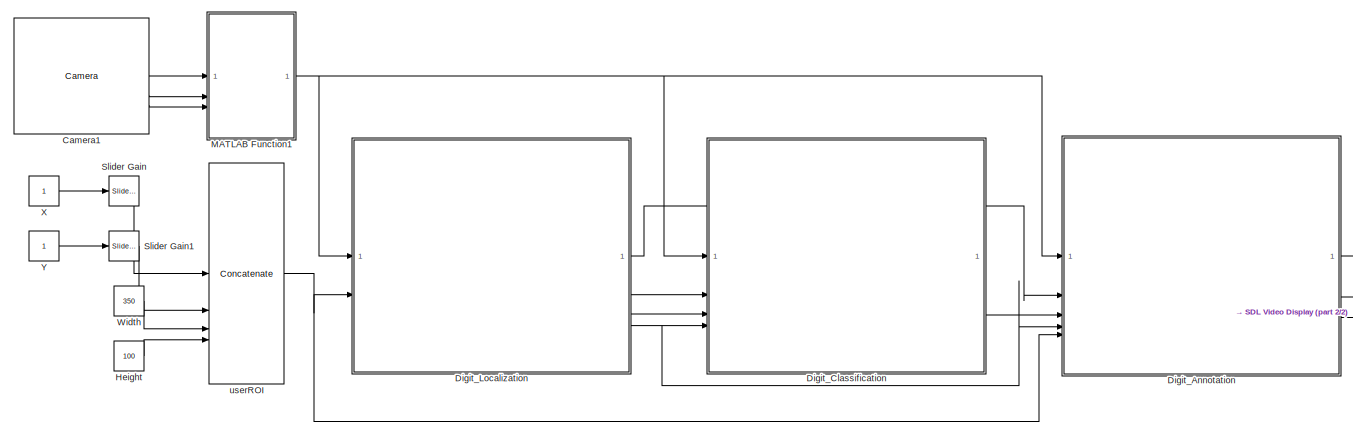
[diagram: root canvas - part 1/2, most of the canvas]
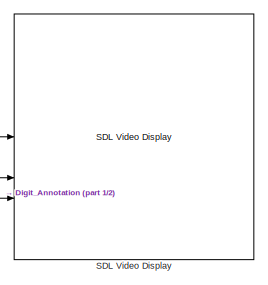
[diagram: root canvas - part 2/2, middle right region]
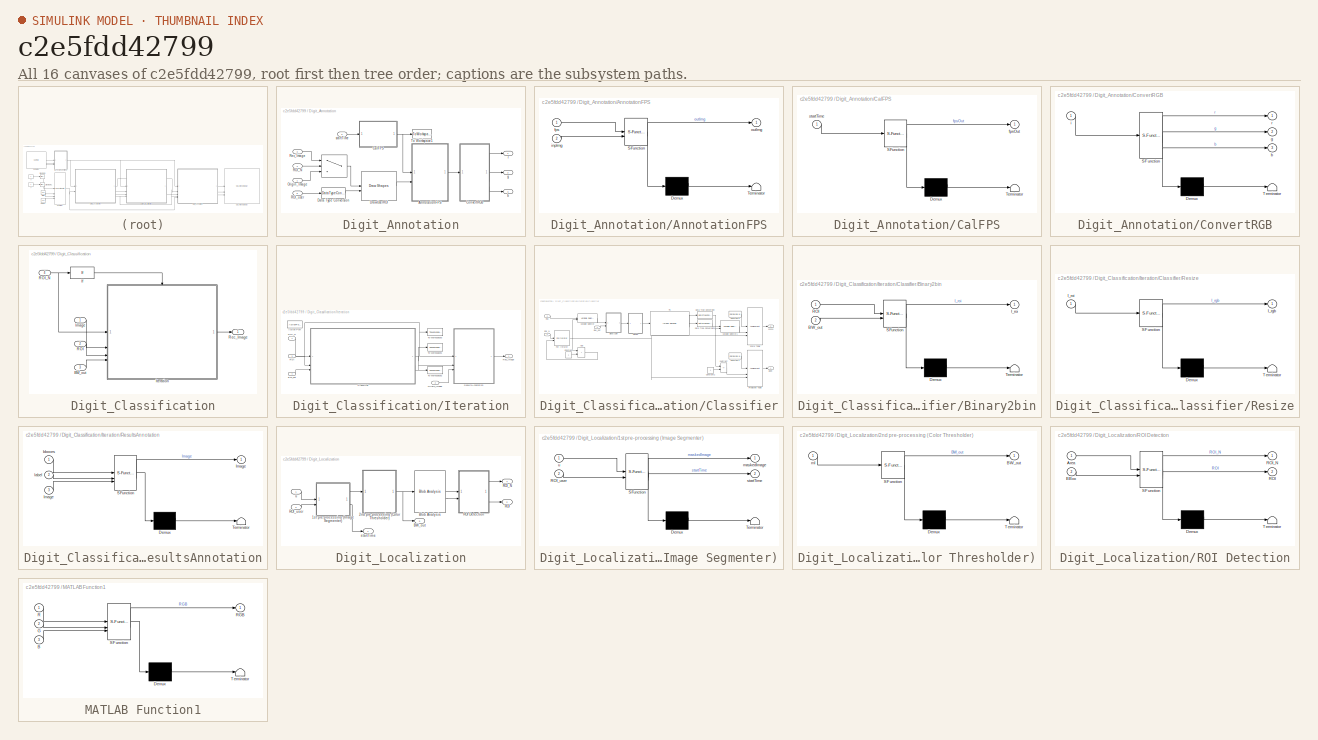
[diagram: thumbnail index - all 16 canvases of the model, root first then tree order]
MODEL slx_c2e5fdd42799
KIND model
CONFIG AbsTol = auto
CONFIG EnableMultiTasking = off
CONFIG FixedStep = 0.1
CONFIG MaxStep = auto
CONFIG MinStep = auto
CONFIG RelTol = 1e-3
CONFIG SampleTimeConstraint = Unconstrained
CONFIG SolverName = FixedStepDiscrete
CONFIG StartTime = 0.0
CONFIG StopTime = 300
BLOCK [Reference] Camera1  REF=nvidiaAVlib/Camera
  SourceBlock = nvidiaAVlib/Camera
  SourceType = nvidiacoder.common.CameraCapture
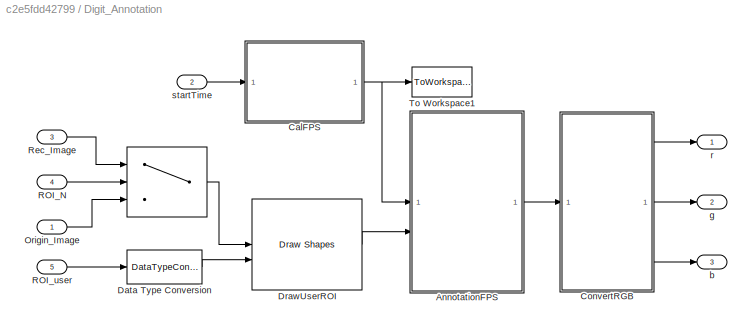
BLOCK [SubSystem] Digit_Annotation
BLOCK [Switch] Digit_Annotation/ 
  Criteria = u2 > Threshold
  InputSameDT = off
  SaturateOnIntegerOverflow = off
BLOCK [SubSystem] Digit_Annotation/AnnotationFPS
  ErrorFcn = Stateflow.Translate.translate
  PermitHierarchicalResolution = ExplicitOnly
  SFBlockType = MATLAB Function
  TreatAsAtomicUnit = on
BLOCK [Demux] Digit_Annotation/AnnotationFPS/ Demux 
  Outputs = 1
BLOCK [S-Function] Digit_Annotation/AnnotationFPS/ SFunction 
  EnableBusSupport = on
  FunctionName = sf_sfun
  PortCounts = [2 2]
  SFcnIsStateOwnerBlock = off
  SFunctionDeploymentMode = off
  Tag = Stateflow S-Function 12
BLOCK [Terminator] Digit_Annotation/AnnotationFPS/ Terminator 
BLOCK [Inport] Digit_Annotation/AnnotationFPS/fps
BLOCK [Inport] Digit_Annotation/AnnotationFPS/inpImg
  Port = 2
BLOCK [Outport] Digit_Annotation/AnnotationFPS/outImg
BLOCK [SubSystem] Digit_Annotation/CalFPS
  ErrorFcn = Stateflow.Translate.translate
  PermitHierarchicalResolution = ExplicitOnly
  SFBlockType = MATLAB Function
  TreatAsAtomicUnit = on
BLOCK [Demux] Digit_Annotation/CalFPS/ Demux 
  Outputs = 1
BLOCK [S-Function] Digit_Annotation/CalFPS/ SFunction 
  EnableBusSupport = on
  FunctionName = sf_sfun
  PortCounts = [1 2]
  SFcnIsStateOwnerBlock = off
  SFunctionDeploymentMode = off
  Tag = Stateflow S-Function 4
BLOCK [Terminator] Digit_Annotation/CalFPS/ Terminator 
BLOCK [Outport] Digit_Annotation/CalFPS/fpsOut
BLOCK [Inport] Digit_Annotation/CalFPS/startTime
BLOCK [SubSystem] Digit_Annotation/ConvertRGB
  ErrorFcn = Stateflow.Translate.translate
  PermitHierarchicalResolution = ExplicitOnly
  SFBlockType = MATLAB Function
  TreatAsAtomicUnit = on
BLOCK [Demux] Digit_Annotation/ConvertRGB/ Demux 
  Outputs = 1
BLOCK [S-Function] Digit_Annotation/ConvertRGB/ SFunction 
  EnableBusSupport = on
  FunctionName = sf_sfun
  PortCounts = [1 4]
  SFcnIsStateOwnerBlock = off
  SFunctionDeploymentMode = off
  Tag = Stateflow S-Function 11
BLOCK [Terminator] Digit_Annotation/ConvertRGB/ Terminator 
BLOCK [Outport] Digit_Annotation/ConvertRGB/b
  Port = 3
BLOCK [Outport] Digit_Annotation/ConvertRGB/g
  Port = 2
BLOCK [Inport] Digit_Annotation/ConvertRGB/i
BLOCK [Outport] Digit_Annotation/ConvertRGB/r
BLOCK [DataTypeConversion] Digit_Annotation/Data Type Conversion
  OutDataTypeStr = uint16
  RndMeth = Floor
  SaturateOnIntegerOverflow = off
BLOCK [Reference] Digit_Annotation/DrawUserROI  REF=visiontextngfix/Draw Shapes
  SourceBlock = visiontextngfix/Draw Shapes
  SourceType = Draw Shapes
BLOCK [Inport] Digit_Annotation/Origin_Image
BLOCK [Inport] Digit_Annotation/ROI_N
  Port = 4
BLOCK [Inport] Digit_Annotation/ROI_user
  Port = 5
BLOCK [Inport] Digit_Annotation/Rec_Image
  Port = 3
BLOCK [ToWorkspace] Digit_Annotation/To Workspace1
  FixptAsFi = on
  MaxDataPoints = inf
  SampleTime = -1
  SaveFormat = Structure With Time
  VariableName = fps
BLOCK [Outport] Digit_Annotation/b
  Port = 3
BLOCK [Outport] Digit_Annotation/g
  Port = 2
BLOCK [Outport] Digit_Annotation/r
BLOCK [Inport] Digit_Annotation/startTime
  Port = 2
BLOCK [SubSystem] Digit_Classification
BLOCK [Inport] Digit_Classification/BW_out
  Port = 3
BLOCK [If] Digit_Classification/If
  ShowElse = off
BLOCK [Inport] Digit_Classification/Image
BLOCK [SubSystem] Digit_Classification/Iteration
  TreatAsAtomicUnit = on
BLOCK [ActionPort] Digit_Classification/Iteration/Action Port
  ActionPortLabel = if(u1 > 0)
  PropagateVarSize = During execution
BLOCK [Inport] Digit_Classification/Iteration/BW_out
  Port = 4
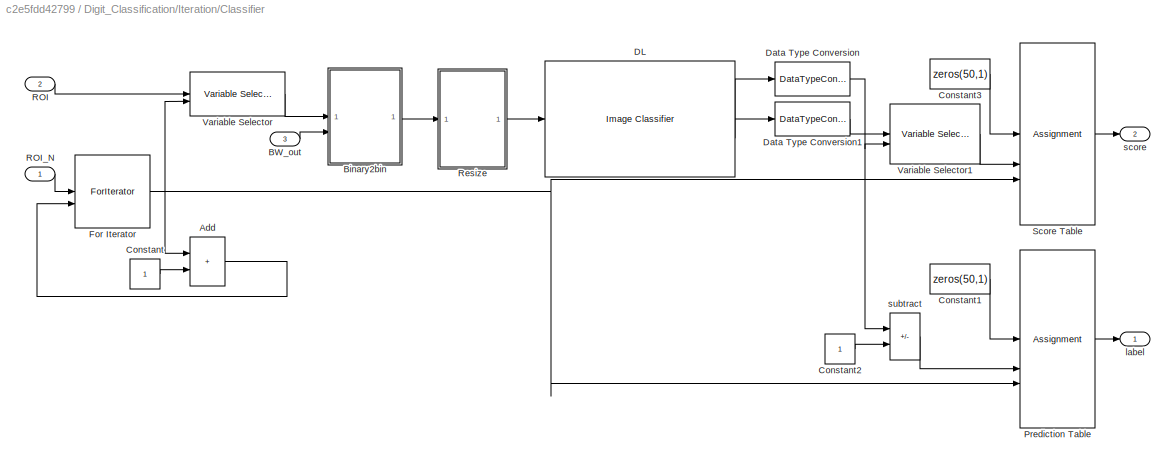
BLOCK [SubSystem] Digit_Classification/Iteration/Classifier
  TreatAsAtomicUnit = on
BLOCK [Sum] Digit_Classification/Iteration/Classifier/Add
  IconShape = rectangular
BLOCK [Inport] Digit_Classification/Iteration/Classifier/BW_out
  Port = 3
BLOCK [SubSystem] Digit_Classification/Iteration/Classifier/Binary2bin
  ErrorFcn = Stateflow.Translate.translate
  PermitHierarchicalResolution = ExplicitOnly
  SFBlockType = MATLAB Function
  TreatAsAtomicUnit = on
BLOCK [Demux] Digit_Classification/Iteration/Classifier/Binary2bin/ Demux 
  Outputs = 1
BLOCK [S-Function] Digit_Classification/Iteration/Classifier/Binary2bin/ SFunction 
  EnableBusSupport = on
  FunctionName = sf_sfun
  PortCounts = [2 2]
  SFcnIsStateOwnerBlock = off
  SFunctionDeploymentMode = off
  Tag = Stateflow S-Function 5
BLOCK [Terminator] Digit_Classification/Iteration/Classifier/Binary2bin/ Terminator 
BLOCK [Inport] Digit_Classification/Iteration/Classifier/Binary2bin/BW_out
  Port = 2
BLOCK [Outport] Digit_Classification/Iteration/Classifier/Binary2bin/I_roi
  VectorParamsAs1DForOutWhenUnconnected = off
BLOCK [Inport] Digit_Classification/Iteration/Classifier/Binary2bin/ROI
BLOCK [Constant] Digit_Classification/Iteration/Classifier/Constant
BLOCK [Constant] Digit_Classification/Iteration/Classifier/Constant1
  Value = zeros(50,1)
BLOCK [Constant] Digit_Classification/Iteration/Classifier/Constant2
BLOCK [Constant] Digit_Classification/Iteration/Classifier/Constant3
  Value = zeros(50,1)
BLOCK [Reference] Digit_Classification/Iteration/Classifier/DL  REF=deeplib/Image Classifier
  SourceBlock = deeplib/Image Classifier
  SourceType = Image Classifier
BLOCK [DataTypeConversion] Digit_Classification/Iteration/Classifier/Data Type Conversion
  OutDataTypeStr = int8
  RndMeth = Floor
  SaturateOnIntegerOverflow = off
BLOCK [DataTypeConversion] Digit_Classification/Iteration/Classifier/Data Type Conversion1
  OutDataTypeStr = double
  RndMeth = Floor
  SaturateOnIntegerOverflow = off
BLOCK [ForIterator] Digit_Classification/Iteration/Classifier/For Iterator
  ExternalIncrement = on
  IterationSource = external
  IterationVariableDataType = double
BLOCK [Assignment] Digit_Classification/Iteration/Classifier/Prediction Table 
  DiagnosticForDimensions = Warning
  IndexOptions = Index vector (port)
  Indices = 1
  OutputSizes = 1
BLOCK [Inport] Digit_Classification/Iteration/Classifier/ROI
  Port = 2
BLOCK [Inport] Digit_Classification/Iteration/Classifier/ROI_N
BLOCK [SubSystem] Digit_Classification/Iteration/Classifier/Resize
  ErrorFcn = Stateflow.Translate.translate
  PermitHierarchicalResolution = ExplicitOnly
  SFBlockType = MATLAB Function
  TreatAsAtomicUnit = on
BLOCK [Demux] Digit_Classification/Iteration/Classifier/Resize/ Demux 
  Outputs = 1
BLOCK [S-Function] Digit_Classification/Iteration/Classifier/Resize/ SFunction 
  EnableBusSupport = on
  FunctionName = sf_sfun
  PortCounts = [1 2]
  SFcnIsStateOwnerBlock = off
  SFunctionDeploymentMode = off
  Tag = Stateflow S-Function 10
BLOCK [Terminator] Digit_Classification/Iteration/Classifier/Resize/ Terminator 
BLOCK [Outport] Digit_Classification/Iteration/Classifier/Resize/I_rgb
BLOCK [Inport] Digit_Classification/Iteration/Classifier/Resize/I_roi
BLOCK [Assignment] Digit_Classification/Iteration/Classifier/Score Table 
  DiagnosticForDimensions = Warning
  IndexOptions = Index vector (port)
  Indices = 1
  OutputSizes = 1
BLOCK [Reference] Digit_Classification/Iteration/Classifier/Variable Selector  REF=dspindex/Variable
Selector
  SourceBlock = dspindex/Variable\nSelector
  SourceType = Variable Selector
BLOCK [Reference] Digit_Classification/Iteration/Classifier/Variable Selector1  REF=dspindex/Variable
Selector
  SourceBlock = dspindex/Variable\nSelector
  SourceType = Variable Selector
BLOCK [Outport] Digit_Classification/Iteration/Classifier/label
BLOCK [Outport] Digit_Classification/Iteration/Classifier/score
  Port = 2
BLOCK [Sum] Digit_Classification/Iteration/Classifier/subtract
  IconShape = rectangular
  Inputs = +-
BLOCK [Inport] Digit_Classification/Iteration/Origin_Image 
  Port = 2
BLOCK [Inport] Digit_Classification/Iteration/ROI
  Port = 3
BLOCK [Inport] Digit_Classification/Iteration/ROI_N
BLOCK [Outport] Digit_Classification/Iteration/Rec_Image
BLOCK [SubSystem] Digit_Classification/Iteration/ResultsAnnotation
  ErrorFcn = Stateflow.Translate.translate
  PermitHierarchicalResolution = ExplicitOnly
  SFBlockType = MATLAB Function
  TreatAsAtomicUnit = on
BLOCK [Demux] Digit_Classification/Iteration/ResultsAnnotation/ Demux 
  Outputs = 1
BLOCK [S-Function] Digit_Classification/Iteration/ResultsAnnotation/ SFunction 
  EnableBusSupport = on
  FunctionName = sf_sfun
  PortCounts = [3 2]
  SFcnIsStateOwnerBlock = off
  SFunctionDeploymentMode = off
  Tag = Stateflow S-Function 6
BLOCK [Terminator] Digit_Classification/Iteration/ResultsAnnotation/ Terminator 
BLOCK [Outport] Digit_Classification/Iteration/ResultsAnnotation/Image
BLOCK [Inport] Digit_Classification/Iteration/ResultsAnnotation/Image 
  Port = 3
BLOCK [Inport] Digit_Classification/Iteration/ResultsAnnotation/bboxes
BLOCK [Inport] Digit_Classification/Iteration/ResultsAnnotation/label
  Port = 2
BLOCK [ToWorkspace] Digit_Classification/Iteration/To Workspace1
  FixptAsFi = on
  MaxDataPoints = inf
  SampleTime = -1
  SaveFormat = Structure With Time
  VariableName = label
BLOCK [ToWorkspace] Digit_Classification/Iteration/To Workspace2
  FixptAsFi = on
  MaxDataPoints = inf
  SampleTime = -1
  SaveFormat = Structure With Time
  VariableName = scores
BLOCK [ToWorkspace] Digit_Classification/Iteration/To Workspace3
  FixptAsFi = on
  MaxDataPoints = inf
  SampleTime = -1
  SaveFormat = Structure With Time
  VariableName = boxes
BLOCK [Inport] Digit_Classification/ROI
  Port = 2
BLOCK [Inport] Digit_Classification/ROI_N
  Port = 4
BLOCK [Outport] Digit_Classification/Rec_Image
BLOCK [SubSystem] Digit_Localization
BLOCK [SubSystem] Digit_Localization/1st pre-processing (Image Segmenter)
  ErrorFcn = Stateflow.Translate.translate
  PermitHierarchicalResolution = ExplicitOnly
  SFBlockType = MATLAB Function
  TreatAsAtomicUnit = on
BLOCK [Demux] Digit_Localization/1st pre-processing (Image Segmenter)/ Demux 
  Outputs = 1
BLOCK [S-Function] Digit_Localization/1st pre-processing (Image Segmenter)/ SFunction 
  EnableBusSupport = on
  FunctionName = sf_sfun
  PortCounts = [2 3]
  SFcnIsStateOwnerBlock = off
  SFunctionDeploymentMode = off
  Tag = Stateflow S-Function 7
BLOCK [Terminator] Digit_Localization/1st pre-processing (Image Segmenter)/ Terminator 
BLOCK [Inport] Digit_Localization/1st pre-processing (Image Segmenter)/ROI_user
  Port = 2
BLOCK [Outport] Digit_Localization/1st pre-processing (Image Segmenter)/maskedImage
BLOCK [Outport] Digit_Localization/1st pre-processing (Image Segmenter)/startTime
  Port = 2
BLOCK [Inport] Digit_Localization/1st pre-processing (Image Segmenter)/u
BLOCK [SubSystem] Digit_Localization/2nd pre-processing (Color Thresholder)
  ErrorFcn = Stateflow.Translate.translate
  PermitHierarchicalResolution = ExplicitOnly
  SFBlockType = MATLAB Function
  TreatAsAtomicUnit = on
BLOCK [Demux] Digit_Localization/2nd pre-processing (Color Thresholder)/ Demux 
  Outputs = 1
BLOCK [S-Function] Digit_Localization/2nd pre-processing (Color Thresholder)/ SFunction 
  EnableBusSupport = on
  FunctionName = sf_sfun
  PortCounts = [1 2]
  SFcnIsStateOwnerBlock = off
  SFunctionDeploymentMode = off
  Tag = Stateflow S-Function 1
BLOCK [Terminator] Digit_Localization/2nd pre-processing (Color Thresholder)/ Terminator 
BLOCK [Outport] Digit_Localization/2nd pre-processing (Color Thresholder)/BW_out
BLOCK [Inport] Digit_Localization/2nd pre-processing (Color Thresholder)/mI
BLOCK [Outport] Digit_Localization/BW_out
  Port = 3
BLOCK [Reference] Digit_Localization/Blob Analysis  REF=visionstatistics/Blob Analysis
  SourceBlock = visionstatistics/Blob Analysis
  SourceType = Blob Analysis
  Tag = vipblks_row_conv
BLOCK [Outport] Digit_Localization/ROI
  Port = 2
BLOCK [SubSystem] Digit_Localization/ROI Detection
  ErrorFcn = Stateflow.Translate.translate
  PermitHierarchicalResolution = ExplicitOnly
  SFBlockType = MATLAB Function
  TreatAsAtomicUnit = on
BLOCK [Demux] Digit_Localization/ROI Detection/ Demux 
  Outputs = 1
BLOCK [S-Function] Digit_Localization/ROI Detection/ SFunction 
  EnableBusSupport = on
  FunctionName = sf_sfun
  PortCounts = [2 3]
  SFcnIsStateOwnerBlock = off
  SFunctionDeploymentMode = off
  Tag = Stateflow S-Function 2
BLOCK [Terminator] Digit_Localization/ROI Detection/ Terminator 
BLOCK [Inport] Digit_Localization/ROI Detection/Area
BLOCK [Inport] Digit_Localization/ROI Detection/BBox
  Port = 2
BLOCK [Outport] Digit_Localization/ROI Detection/ROI
  Port = 2
BLOCK [Outport] Digit_Localization/ROI Detection/ROI_N
BLOCK [Outport] Digit_Localization/ROI_N
  Port = 4
BLOCK [Inport] Digit_Localization/ROI_user
  Port = 2
BLOCK [Outport] Digit_Localization/startTime
BLOCK [Inport] Digit_Localization/u
BLOCK [Constant] Height
  Value = 100
BLOCK [SubSystem] MATLAB Function1
  ErrorFcn = Stateflow.Translate.translate
  PermitHierarchicalResolution = ExplicitOnly
  SFBlockType = MATLAB Function
  TreatAsAtomicUnit = on
BLOCK [Demux] MATLAB Function1/ Demux 
  Outputs = 1
BLOCK [S-Function] MATLAB Function1/ SFunction 
  EnableBusSupport = on
  FunctionName = sf_sfun
  PortCounts = [3 2]
  SFcnIsStateOwnerBlock = off
  SFunctionDeploymentMode = off
  Tag = Stateflow S-Function 3
BLOCK [Terminator] MATLAB Function1/ Terminator 
BLOCK [Inport] MATLAB Function1/B
  Port = 3
BLOCK [Inport] MATLAB Function1/G
  Port = 2
BLOCK [Inport] MATLAB Function1/R
BLOCK [Outport] MATLAB Function1/RGB
BLOCK [Reference] SDL Video Display  REF=nvidiaAVlib/SDL Video Display
  SourceBlock = nvidiaAVlib/SDL Video Display
  SourceType = SDL Video Display
BLOCK [Reference] Slider Gain  REF=simulink/Math
Operations/Slider
Gain
  SourceBlock = simulink/Math\nOperations/Slider\nGain
  SourceType = Slider Gain
BLOCK [Reference] Slider Gain1  REF=simulink/Math
Operations/Slider
Gain
  SourceBlock = simulink/Math\nOperations/Slider\nGain
  SourceType = Slider Gain
BLOCK [Constant] Width
  Value = 350
BLOCK [Constant] X
BLOCK [Constant] Y
BLOCK [Concatenate] userROI
  Mode = Multidimensional array
  NumInputs = 4
LINE Camera1:1 -> MATLAB Function1:1
LINE Camera1:2 -> MATLAB Function1:2
LINE Camera1:3 -> MATLAB Function1:3
LINE Digit_Annotation/ :1 -> Digit_Annotation/DrawUserROI:1
LINE Digit_Annotation/AnnotationFPS:1 -> Digit_Annotation/ConvertRGB:1
NET Digit_Annotation/CalFPS:1 -> Digit_Annotation/AnnotationFPS:1, Digit_Annotation/To Workspace1:1
LINE Digit_Annotation/ConvertRGB:1 -> Digit_Annotation/r:1
LINE Digit_Annotation/ConvertRGB:2 -> Digit_Annotation/g:1
LINE Digit_Annotation/ConvertRGB:3 -> Digit_Annotation/b:1
LINE Digit_Annotation/Data Type Conversion:1 -> Digit_Annotation/DrawUserROI:2
LINE Digit_Annotation/DrawUserROI:1 -> Digit_Annotation/AnnotationFPS:2
LINE Digit_Annotation/Origin_Image:1 -> Digit_Annotation/ :3
LINE Digit_Annotation/ROI_N:1 -> Digit_Annotation/ :2
LINE Digit_Annotation/ROI_user:1 -> Digit_Annotation/Data Type Conversion:1
LINE Digit_Annotation/Rec_Image:1 -> Digit_Annotation/ :1
LINE Digit_Annotation/startTime:1 -> Digit_Annotation/CalFPS:1
LINE Digit_Annotation:1 -> SDL Video Display:1
LINE Digit_Annotation:2 -> SDL Video Display:2
LINE Digit_Annotation:3 -> SDL Video Display:3
LINE Digit_Classification/BW_out:1 -> Digit_Classification/Iteration:4
LINE Digit_Classification/If:1 -> Digit_Classification/Iteration:ifaction
LINE Digit_Classification/Image:1 -> Digit_Classification/Iteration:2
LINE Digit_Classification/Iteration/BW_out:1 -> Digit_Classification/Iteration/Classifier:3
LINE Digit_Classification/Iteration/Classifier/Add:1 -> Digit_Classification/Iteration/Classifier/For Iterator:2
LINE Digit_Classification/Iteration/Classifier/BW_out:1 -> Digit_Classification/Iteration/Classifier/Binary2bin:2
LINE Digit_Classification/Iteration/Classifier/Binary2bin:1 -> Digit_Classification/Iteration/Classifier/Resize:1
LINE Digit_Classification/Iteration/Classifier/Constant1:1 -> Digit_Classification/Iteration/Classifier/Prediction Table :1
LINE Digit_Classification/Iteration/Classifier/Constant2:1 -> Digit_Classification/Iteration/Classifier/subtract:2
LINE Digit_Classification/Iteration/Classifier/Constant3:1 -> Digit_Classification/Iteration/Classifier/Score Table :1
LINE Digit_Classification/Iteration/Classifier/Constant:1 -> Digit_Classification/Iteration/Classifier/Add:2
LINE Digit_Classification/Iteration/Classifier/DL:1 -> Digit_Classification/Iteration/Classifier/Data Type Conversion:1
LINE Digit_Classification/Iteration/Classifier/DL:2 -> Digit_Classification/Iteration/Classifier/Data Type Conversion1:1
LINE Digit_Classification/Iteration/Classifier/Data Type Conversion1:1 -> Digit_Classification/Iteration/Classifier/Variable Selector1:1
NET Digit_Classification/Iteration/Classifier/Data Type Conversion:1 -> Digit_Classification/Iteration/Classifier/Variable Selector1:2, Digit_Classification/Iteration/Classifier/subtract:1
NET Digit_Classification/Iteration/Classifier/For Iterator:1 -> Digit_Classification/Iteration/Classifier/Add:1, Digit_Classification/Iteration/Classifier/Prediction Table :3, Digit_Classification/Iteration/Classifier/Score Table :3, Digit_Classification/Iteration/Classifier/Variable Selector:2
LINE Digit_Classification/Iteration/Classifier/Prediction Table :1 -> Digit_Classification/Iteration/Classifier/label:1
LINE Digit_Classification/Iteration/Classifier/ROI:1 -> Digit_Classification/Iteration/Classifier/Variable Selector:1
LINE Digit_Classification/Iteration/Classifier/ROI_N:1 -> Digit_Classification/Iteration/Classifier/For Iterator:1
LINE Digit_Classification/Iteration/Classifier/Resize:1 -> Digit_Classification/Iteration/Classifier/DL:1
LINE Digit_Classification/Iteration/Classifier/Score Table :1 -> Digit_Classification/Iteration/Classifier/score:1
LINE Digit_Classification/Iteration/Classifier/Variable Selector1:1 -> Digit_Classification/Iteration/Classifier/Score Table :2
LINE Digit_Classification/Iteration/Classifier/Variable Selector:1 -> Digit_Classification/Iteration/Classifier/Binary2bin:1
LINE Digit_Classification/Iteration/Classifier/subtract:1 -> Digit_Classification/Iteration/Classifier/Prediction Table :2
NET Digit_Classification/Iteration/Classifier:1 -> Digit_Classification/Iteration/ResultsAnnotation:2, Digit_Classification/Iteration/To Workspace1:1
LINE Digit_Classification/Iteration/Classifier:2 -> Digit_Classification/Iteration/To Workspace2:1
LINE Digit_Classification/Iteration/Origin_Image :1 -> Digit_Classification/Iteration/ResultsAnnotation:3
NET Digit_Classification/Iteration/ROI:1 -> Digit_Classification/Iteration/Classifier:2, Digit_Classification/Iteration/ResultsAnnotation:1, Digit_Classification/Iteration/To Workspace3:1
LINE Digit_Classification/Iteration/ROI_N:1 -> Digit_Classification/Iteration/Classifier:1
LINE Digit_Classification/Iteration/ResultsAnnotation:1 -> Digit_Classification/Iteration/Rec_Image:1
LINE Digit_Classification/Iteration:1 -> Digit_Classification/Rec_Image:1
LINE Digit_Classification/ROI:1 -> Digit_Classification/Iteration:3
NET Digit_Classification/ROI_N:1 -> Digit_Classification/If:1, Digit_Classification/Iteration:1
LINE Digit_Classification:1 -> Digit_Annotation:3
LINE Digit_Localization/1st pre-processing (Image Segmenter):1 -> Digit_Localization/2nd pre-processing (Color Thresholder):1
LINE Digit_Localization/1st pre-processing (Image Segmenter):2 -> Digit_Localization/startTime:1
NET Digit_Localization/2nd pre-processing (Color Thresholder):1 -> Digit_Localization/BW_out:1, Digit_Localization/Blob Analysis:1
LINE Digit_Localization/Blob Analysis:1 -> Digit_Localization/ROI Detection:1
LINE Digit_Localization/Blob Analysis:2 -> Digit_Localization/ROI Detection:2
LINE Digit_Localization/ROI Detection:1 -> Digit_Localization/ROI_N:1
LINE Digit_Localization/ROI Detection:2 -> Digit_Localization/ROI:1
LINE Digit_Localization/ROI_user:1 -> Digit_Localization/1st pre-processing (Image Segmenter):2
LINE Digit_Localization/u:1 -> Digit_Localization/1st pre-processing (Image Segmenter):1
LINE Digit_Localization:1 -> Digit_Annotation:2
LINE Digit_Localization:2 -> Digit_Classification:2
LINE Digit_Localization:3 -> Digit_Classification:3
NET Digit_Localization:4 -> Digit_Annotation:4, Digit_Classification:4
LINE Height:1 -> userROI:4
NET MATLAB Function1:1 -> Digit_Annotation:1, Digit_Classification:1, Digit_Localization:1
LINE Slider Gain1:1 -> userROI:2
LINE Slider Gain:1 -> userROI:1
LINE Width:1 -> userROI:3
LINE X:1 -> Slider Gain:1
LINE Y:1 -> Slider Gain1:1
NET userROI:1 -> Digit_Annotation:5, Digit_Localization:2
note: NET lines group one-source signal fan-out (src -> all destinations, sorted); 1:1 wires keep LINE
CHART Digit_Localization/2nd pre-processing
(Color Thresholder) states=1 transitions=1
  STATE_LABEL 'eML_blk_kernel()'
  STATE_LABEL 'SCRIPT:\nfunction BW_out  = prePro2(mI)\n\nRGB = mI;\n\n%%\n\n% Convert RGB image to chosen color space\nI = rgb2hsv(RGB);\n\n% Define thresholds for channel 1 based on histogram settings\nchannel1Min = 0.000;\nchannel1Max = 1.000;\n\n% Define thresholds for channel 2 based on histogram settings\nchannel2Min = 0.000;\nchannel2Max = 0.411;\n\n% Define thresholds for channel 3 based on histogram settings\nchannel3Min ...<+2174ch>'
CHART Digit_Localization/ROI Detection states=1 transitions=1
  STATE_LABEL 'eML_blk_kernel()'
  STATE_LABEL 'SCRIPT:\nfunction [ROI_N, ROI]  = roiDetection(Area, BBox)\n\n    ROI = zeros(size(BBox,1), size(BBox,2));\n    areaConstraint = Area > 150;\n\n    % Keep regions that meet the area constraint.\n    roi = double(BBox(areaConstraint, :));\n\n    % Compute the aspect ratio.\n    width  = roi(:,3);\n    height = roi(:,4);\n    aspectRatio = width ./ height;\n    \n    % An aspect ratio between 0.25 and 1 is typica...<+222ch>'
CHART MATLAB Function1 states=1 transitions=1
  STATE_LABEL 'eML_blk_kernel()'
  STATE_LABEL 'SCRIPT:\nfunction RGB  = rgb2Img(R,G,B)\nRGB = coder.nullcopy(uint8(zeros(size(R,1),size(R,2),3)));\nRGB(:,:,1) = R;\nRGB(:,:,2) = G;\nRGB(:,:,3) = B;\nend\n'
CHART Digit_Annotation/CalFPS states=1 transitions=1
  STATE_LABEL 'eML_blk_kernel()'
  STATE_LABEL 'SCRIPT:\nfunction fpsOut  = calcFPS(startTime)\nfinishTime = datetime;\n\ndiffTime = seconds(finishTime-datetime(startTime));\npersistent count;\nif isempty(count)\n    count = 0;\nend\npersistent fps;\nif isempty(fps)\n    fps = 0;\nend\nfps = (count*fps + 1*(1/diffTime))/(count+1);\n\ncount = count + 1;\nfpsOut = fps;'
CHART Digit_Classification/Iteration/Classifier/Binary2bin states=1 transitions=1
  STATE_LABEL 'eML_blk_kernel()'
  STATE_LABEL "SCRIPT:\nfunction I_roi  = binROI(ROI,BW_out)\n\n% Crop the image based on the area of interest\nbin = imcrop(BW_out, ROI);\n\n% %I_roi = coder.nullcopy(zeros(28,28,'logical'));\n% I_roi = imresize(bin, [28 28]);\n\nI_padd = padarray(bin,[floor((max(size(bin))-size(bin,1))/2),floor((max(size(bin))-size(bin,2))/2)],0,'both');\nI_roi = imresize(I_padd, [28 28]);\nI_roi = imcomplement(I_roi);\n\n\n"
CHART Digit_Classification/Iteration/ResultsAnnotation states=1 transitions=1
  STATE_LABEL 'eML_blk_kernel()'
  STATE_LABEL "SCRIPT:\nfunction Image = annoImg( bboxes, label, Image)\n        Image = insertObjectAnnotation(Image, 'rectangle',bboxes,label);\nend"
CHART Digit_Localization/1st pre-processing
(Image Segmenter) states=1 transitions=1
  STATE_LABEL 'eML_blk_kernel()'
  STATE_LABEL 'SCRIPT:\nfunction [maskedImage, startTime]  = prePro1(u, ROI_user)\n\ncurrentTime = datetime;\nstartTime = [currentTime.Year currentTime.Month currentTime.Day currentTime.Hour ...\n    currentTime.Minute currentTime.Second];\n\n% Convert RGB image into L*a*b* color space.\nX = rgb2lab(u);\n\n% Create empty mask.\nBW = false(size(X,1),size(X,2));\n\n% ROI 그리기\n\nxPos = [ROI_user(1), ROI_user(1), ROI_user(1)+ROI_u...<+514ch>'
CHART Digit_Classification/Iteration/Classifier/Resize states=1 transitions=1
  STATE_LABEL 'eML_blk_kernel()'
  STATE_LABEL "SCRIPT:\nfunction I_rgb = reSize(I_roi)\n\n%I_roi = coder.nullcopy(zeros(28,28,'logical'));W\nI = im2uint8(imresize(I_roi,[227, 227]));\nI_rgb = cat(3, I, I, I);\n\n"
CHART Digit_Annotation/ConvertRGB states=1 transitions=1
  STATE_LABEL 'eML_blk_kernel()'
  STATE_LABEL 'SCRIPT:\nfunction [r,g,b] = ImageToRGB(i)\n%#codegen\nr = rot90(flip(i(:,:,1),2));\ng = rot90(flip(i(:,:,2),2));\nb = rot90(flip(i(:,:,3),2));\nend'
CHART Digit_Annotation/AnnotationFPS states=1 transitions=1
  STATE_LABEL 'eML_blk_kernel()'
  STATE_LABEL "SCRIPT:\nfunction outImg = insertFPS(fps, inpImg)\n\n\n%% Insert prediction with scores in the image\n\n%Pad Image\n%outImg = padarray(inpImg,[0,100],0,'pre');\n\noutImg = insertText(inpImg, [10 80],['FPS : ' sprintf('%0.2f',fps) ], 'AnchorPoint','LeftBottom');\n\n"
CHART  states=0 transitions=0
CHART  states=0 transitions=0
CHART  states=0 transitions=0
CHART  states=0 transitions=0
CHART  states=0 transitions=0
CHART  states=0 transitions=0
CHART  states=0 transitions=0
CHART  states=0 transitions=0
CHART  states=0 transitions=0
CHART  states=0 transitions=0
